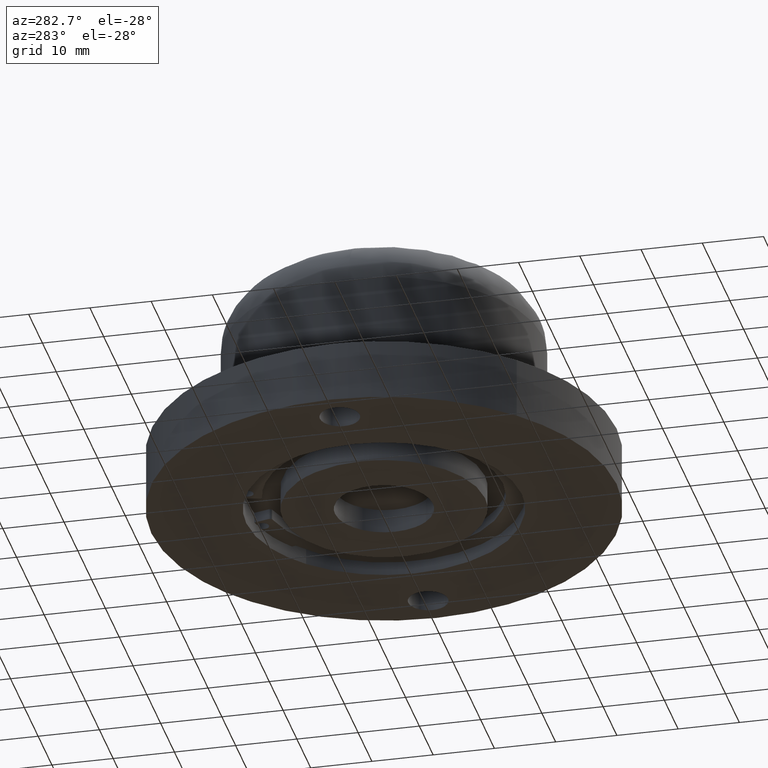
[diagram: clean part render]
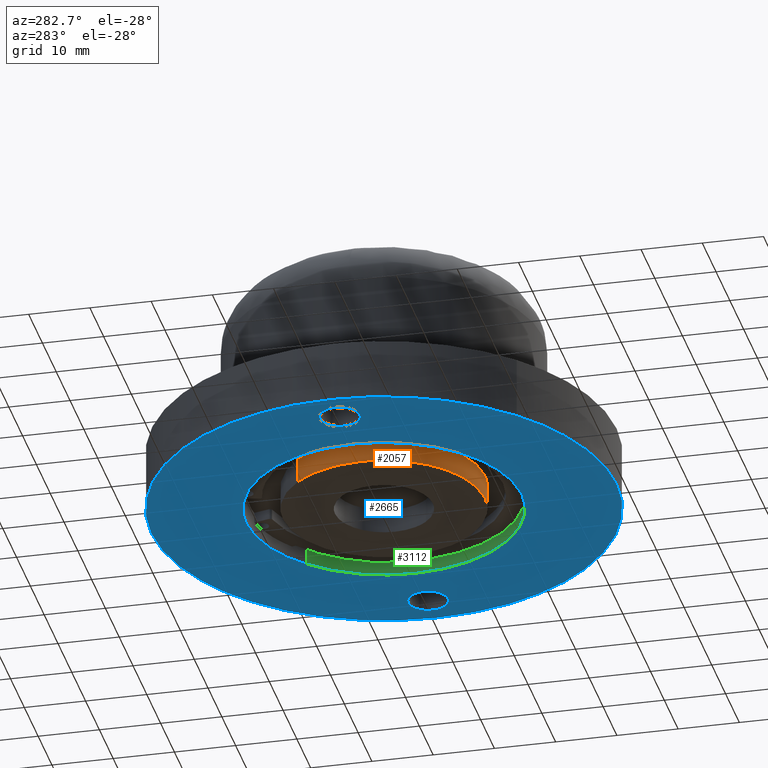
[diagram: same view with three faces highlighted in distinct colors, each labeled with its STEP entity id]
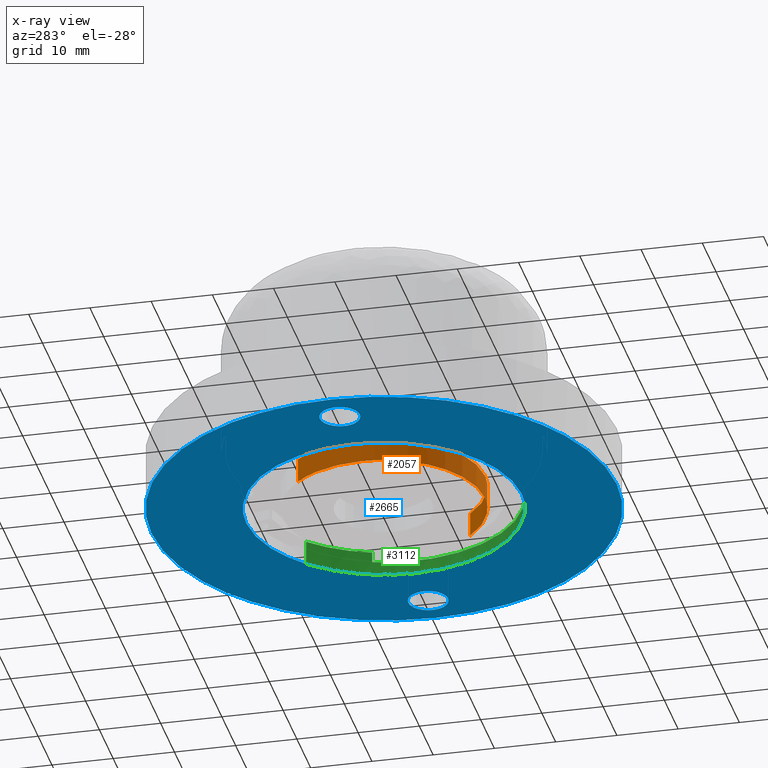
[diagram: x-ray of the same camera — body ghosted, the three highlighted faces saturated]
A machine part, auxiliary view with three faces highlighted in distinct colors.
The next image is the same camera in x-ray (body ghosted, the three faces saturated) — at least one of them is partly hidden behind the body in this view.
Their STEP definitions:

[orange] entity #2057 — the highlighted face is a freeform B-spline surface patch.
#1619=CARTESIAN_POINT('',(11.968676961405169,-11.357850386732320,3.801882E-012));
#1620=VERTEX_POINT('',#1619);
#1632=CARTESIAN_POINT('',(-0.000000775139092,-16.499999999999979,0.0));
#1633=VERTEX_POINT('',#1632);
#1634=CARTESIAN_POINT('',(11.968676961405169,-11.357850386732320,3.801882E-012));
#1635=CARTESIAN_POINT('',(10.984789090985879,-12.395316378407610,3.489348E-012));
#1636=CARTESIAN_POINT('',(9.045307793801317,-13.967843722948130,2.873266E-012));
#1637=CARTESIAN_POINT('',(6.152505709529919,-15.388439940342391,1.954360E-012));
#1638=CARTESIAN_POINT('',(3.243038940135712,-16.271971440735658,1.030160E-012));
#1639=CARTESIAN_POINT('',(1.255437118756049,-16.500275600590339,3.987932E-013));
#1640=CARTESIAN_POINT('',(-0.000000775139092,-16.499999999999979,0.0));
#1641=B_SPLINE_CURVE_WITH_KNOTS('',3,(#1634,#1635,#1636,#1637,#1638,#1639,#1640),.UNSPECIFIED.,.F.,.U.,(4,1,1,1,4),(0.000000018204332,4.289325287377976,7.427840289627335,9.624824988455574,13.391061784010050),.UNSPECIFIED.);
#1642=EDGE_CURVE('',#1620,#1633,#1641,.T.);
#1644=CARTESIAN_POINT('',(-16.500000000000000,0.0,0.0));
#1645=VERTEX_POINT('',#1644);
#1646=CARTESIAN_POINT('',(-0.000000775139092,-16.499999999999979,0.0));
#1647=CARTESIAN_POINT('',(-1.248687746818598,-16.500276981873480,0.0));
#1648=CARTESIAN_POINT('',(-3.239656736031277,-16.272811059789490,0.0));
#1649=CARTESIAN_POINT('',(-6.249951593112439,-15.359748829537111,0.0));
#1650=CARTESIAN_POINT('',(-8.583690488987827,-14.185068146472620,0.0));
#1651=CARTESIAN_POINT('',(-10.598194381921360,-12.700331333389590,0.0));
#1652=CARTESIAN_POINT('',(-12.366225815755641,-11.027533720586330,0.0));
#1653=CARTESIAN_POINT('',(-13.959986777233210,-8.959283221878900,0.0));
#1654=CARTESIAN_POINT('',(-15.238405517897339,-6.495022045210793,0.0));
#1655=CARTESIAN_POINT('',(-16.222388517718041,-3.577074260860902,0.0));
#1656=CARTESIAN_POINT('',(-16.500372596683661,-1.383686951275259,0.0));
#1657=CARTESIAN_POINT('',(-16.500000000000000,0.0,0.0));
#1658=B_SPLINE_CURVE_WITH_KNOTS('',3,(#1646,#1647,#1648,#1649,#1650,#1651,#1652,#1653,#1654,#1655,#1656,#1657),.UNSPECIFIED.,.F.,.U.,(4,1,1,1,1,1,1,1,1,4),(0.000000063737868,3.745983837319226,5.973329675447150,9.415591289025549,11.541722752784070,13.465298644780550,16.705067737391211,19.337391216413419,21.767237217739769,25.918179613273669),.UNSPECIFIED.);
#1659=EDGE_CURVE('',#1633,#1645,#1658,.T.);
#1661=CARTESIAN_POINT('',(-11.968676961405210,11.357850386732361,3.801411E-012));
#1662=VERTEX_POINT('',#1661);
#1663=CARTESIAN_POINT('',(-16.500000000000000,0.0,0.0));
#1664=CARTESIAN_POINT('',(-16.500093935574050,0.978686887331953,3.275612E-013));
#1665=CARTESIAN_POINT('',(-16.360251650265472,2.544539418220553,8.516435E-013));
#1666=CARTESIAN_POINT('',(-15.813478013553880,4.865869839065637,1.628580E-012));
#1667=CARTESIAN_POINT('',(-15.135667435314730,6.672952209941419,2.233401E-012));
#1668=CARTESIAN_POINT('',(-13.928140868614250,8.989943501103703,3.008885E-012));
#1669=CARTESIAN_POINT('',(-12.844708374387460,10.435152513913220,3.492589E-012));
#1670=CARTESIAN_POINT('',(-11.968676961405210,11.357850386732361,3.801411E-012));
#1671=B_SPLINE_CURVE_WITH_KNOTS('',3,(#1663,#1664,#1665,#1666,#1667,#1668,#1669,#1670),.UNSPECIFIED.,.F.,.U.,(4,1,1,1,1,4),(0.000000014829789,2.936042456992983,4.697677696256275,7.144362460186496,8.710257952234343,12.527119024813331),.UNSPECIFIED.);
#1672=EDGE_CURVE('',#1645,#1662,#1671,.T.);
#1979=CARTESIAN_POINT('',(11.968677121702740,-11.357850498946940,4.100000000000000));
#1980=CARTESIAN_POINT('',(0.610826622755804,-23.326527620649678,4.100000000000000));
#1981=CARTESIAN_POINT('',(-11.357850498946940,-11.968677121702740,4.100000000000000));
#1982=CARTESIAN_POINT('',(-23.326527620649678,-0.610826622755804,4.100000000000000));
#1983=CARTESIAN_POINT('',(-11.968677121702740,11.357850498946940,4.100000000000000));
#1984=CARTESIAN_POINT('',(11.968677121702740,-11.357850498946940,-0.102500000000000));
#1985=CARTESIAN_POINT('',(0.610826622755804,-23.326527620649678,-0.102500000000000));
#1986=CARTESIAN_POINT('',(-11.357850498946940,-11.968677121702740,-0.102500000000000));
#1987=CARTESIAN_POINT('',(-23.326527620649678,-0.610826622755804,-0.102500000000000));
#1988=CARTESIAN_POINT('',(-11.968677121702740,11.357850498946940,-0.102500000000000));
#1996=(BOUNDED_SURFACE()B_SPLINE_SURFACE(2,1,((#1979,#1984),(#1980,#1985),(#1981,#1986),(#1982,#1987),(#1983,#1988)),.UNSPECIFIED.,.F.,.F.,.U.)B_SPLINE_SURFACE_WITH_KNOTS((3,2,3),(2,2),(0.0,27.338095116624270,54.676190233248548),(0.0,4.202500000000000),.UNSPECIFIED.)GEOMETRIC_REPRESENTATION_ITEM()RATIONAL_B_SPLINE_SURFACE(((1.0,1.0),(0.707106781186548,0.707106781186548),(1.0,1.0),(0.707106781186548,0.707106781186548),(1.0,1.0)))REPRESENTATION_ITEM('')SURFACE());
#1997=ORIENTED_EDGE('',*,*,#1642,.F.);
#1998=CARTESIAN_POINT('',(11.968676961649249,-11.357850386475111,4.0));
#1999=VERTEX_POINT('',#1998);
#2000=CARTESIAN_POINT('',(11.968676961649249,-11.357850386475111,4.0));
#2001=CARTESIAN_POINT('',(11.968676961405169,-11.357850386732320,3.801882E-012));
#2002=QUASI_UNIFORM_CURVE('',1,(#2000,#2001),.UNSPECIFIED.,.F.,.U.);
#2003=EDGE_CURVE('',#1999,#1620,#2002,.T.);
#2004=ORIENTED_EDGE('',*,*,#2003,.F.);
#2005=CARTESIAN_POINT('',(-0.000000775139092,-16.499999999999979,4.0));
#2006=VERTEX_POINT('',#2005);
#2007=CARTESIAN_POINT('',(11.968676961649249,-11.357850386475111,4.0));
#2008=CARTESIAN_POINT('',(11.152664194395530,-12.218068598223660,4.000000000000002));
#2009=CARTESIAN_POINT('',(9.708408474394167,-13.443441752582009,4.000000000000017));
#2010=CARTESIAN_POINT('',(7.239973662596734,-14.898394984033320,3.999999999999993));
#2011=CARTESIAN_POINT('',(5.062017039053404,-15.769379129730890,4.000000000000020));
#2012=CARTESIAN_POINT('',(2.545663701152891,-16.362291743389921,3.999999999999968));
#2013=CARTESIAN_POINT('',(0.941560857529339,-16.500084529601821,4.000000000000058));
#2014=CARTESIAN_POINT('',(-0.000000775139092,-16.499999999999979,4.0));
#2015=B_SPLINE_CURVE_WITH_KNOTS('',3,(#2007,#2008,#2009,#2010,#2011,#2012,#2013,#2014),.UNSPECIFIED.,.F.,.U.,(4,1,1,1,1,4),(0.000000018207421,3.557001832210140,5.649360593906550,8.578648615879637,10.566388223454940,13.391061784364620),.UNSPECIFIED.);
#2016=EDGE_CURVE('',#1999,#2006,#2015,.T.);
#2017=ORIENTED_EDGE('',*,*,#2016,.T.);
#2018=CARTESIAN_POINT('',(-16.500000000000000,0.0,4.0));
#2019=VERTEX_POINT('',#2018);
#2020=CARTESIAN_POINT('',(-0.000000775139092,-16.499999999999979,4.0));
#2021=CARTESIAN_POINT('',(-1.248687707669788,-16.500276876803550,4.000000000000012));
#2022=CARTESIAN_POINT('',(-3.239656820639448,-16.272811278881559,3.999999999999990));
#2023=CARTESIAN_POINT('',(-6.249951575072144,-15.359748735198460,3.999999999999993));
#2024=CARTESIAN_POINT('',(-8.583690424453968,-14.185068117383100,4.000000000000041));
#2025=CARTESIAN_POINT('',(-10.598194679566859,-12.700331440198950,3.999999999999937));
#2026=CARTESIAN_POINT('',(-12.366224141112459,-11.027533280366990,4.000000000000054));
#2027=CARTESIAN_POINT('',(-13.959991382820020,-8.959284406249260,3.999999999999987));
#2028=CARTESIAN_POINT('',(-15.222802208195130,-6.525074197197268,3.999999999999999));
#2029=CARTESIAN_POINT('',(-16.215533672528540,-3.610804622571055,4.0));
#2030=CARTESIAN_POINT('',(-16.500416458626830,-1.417446212818309,4.0));
#2031=CARTESIAN_POINT('',(-16.500000000000000,0.0,4.0));
#2032=B_SPLINE_CURVE_WITH_KNOTS('',3,(#2020,#2021,#2022,#2023,#2024,#2025,#2026,#2027,#2028,#2029,#2030,#2031),.UNSPECIFIED.,.F.,.U.,(4,1,1,1,1,1,1,1,1,4),(0.000000063737868,3.745983837319226,5.973329675447150,9.415591289025549,11.541722752784070,13.465298644780550,16.705067737391211,19.337391216413419,21.665983173763401,25.918179613273669),.UNSPECIFIED.);
#2033=EDGE_CURVE('',#2006,#2019,#2032,.T.);
#2034=ORIENTED_EDGE('',*,*,#2033,.T.);
#2035=CARTESIAN_POINT('',(-11.968676961649290,11.357850386475150,4.0));
#2036=VERTEX_POINT('',#2035);
#2037=CARTESIAN_POINT('',(-16.500000000000000,0.0,4.0));
#2038=CARTESIAN_POINT('',(-16.500222018484990,1.174439219009774,4.000000000000004));
#2039=CARTESIAN_POINT('',(-16.318070360276550,2.870720046987506,3.999999999999987));
#2040=CARTESIAN_POINT('',(-15.627074709375970,5.458129619005789,4.000000000000017));
#2041=CARTESIAN_POINT('',(-14.777806589435810,7.481485487101053,3.999999999999978));
#2042=CARTESIAN_POINT('',(-13.482158891822740,9.600988386280774,4.000000000000001));
#2043=CARTESIAN_POINT('',(-12.530110986834559,10.766290523299469,4.000000000000048));
#2044=CARTESIAN_POINT('',(-11.968676961649290,11.357850386475150,4.0));
#2045=B_SPLINE_CURVE_WITH_KNOTS('',3,(#2037,#2038,#2039,#2040,#2041,#2042,#2043,#2044),.UNSPECIFIED.,.F.,.U.,(4,1,1,1,1,4),(0.000000014828075,3.523253725374538,5.089144237698300,8.025176811392296,10.080420592119429,12.527119024458740),.UNSPECIFIED.);
#2046=EDGE_CURVE('',#2019,#2036,#2045,.T.);
#2047=ORIENTED_EDGE('',*,*,#2046,.T.);
#2048=CARTESIAN_POINT('',(-11.968676961649290,11.357850386475150,4.0));
#2049=CARTESIAN_POINT('',(-11.968676961405210,11.357850386732361,3.801411E-012));
#2050=QUASI_UNIFORM_CURVE('',1,(#2048,#2049),.UNSPECIFIED.,.F.,.U.);
#2051=EDGE_CURVE('',#2036,#1662,#2050,.T.);
#2052=ORIENTED_EDGE('',*,*,#2051,.T.);
#2053=ORIENTED_EDGE('',*,*,#1672,.F.);
#2054=ORIENTED_EDGE('',*,*,#1659,.F.);
#2055=EDGE_LOOP('',(#1997,#2004,#2017,#2034,#2047,#2052,#2053,#2054));
#2056=FACE_OUTER_BOUND('',#2055,.T.);
#2057=ADVANCED_FACE('',(#2056),#1996,.T.);

[blue] entity #2665 — the highlighted face is a freeform B-spline surface patch.
#1732=CARTESIAN_POINT('',(-29.642533528897019,-2.237152302038278,1.449313E-012));
#1733=VERTEX_POINT('',#1732);
#1734=CARTESIAN_POINT('',(-32.000000872032032,-3.249999999999883,0.0));
#1735=VERTEX_POINT('',#1734);
#1736=CARTESIAN_POINT('',(-29.642533528897019,-2.237152302038278,1.449313E-012));
#1737=CARTESIAN_POINT('',(-29.812718911954310,-2.416553630320021,1.344687E-012));
#1738=CARTESIAN_POINT('',(-30.194299978348852,-2.736201311343200,1.110101E-012));
#1739=CARTESIAN_POINT('',(-30.983585320248569,-3.136453694357955,6.248673E-013));
#1740=CARTESIAN_POINT('',(-31.615299871053061,-3.250293337314126,2.365047E-013));
#1741=CARTESIAN_POINT('',(-32.000000872032032,-3.249999999999883,0.0));
#1742=B_SPLINE_CURVE_WITH_KNOTS('',3,(#1736,#1737,#1738,#1739,#1740,#1741),.UNSPECIFIED.,.F.,.U.,(4,1,1,4),(0.000000034380095,0.741839680325937,1.483664744429159,2.637647175894150),.UNSPECIFIED.);
#1743=EDGE_CURVE('',#1733,#1735,#1742,.T.);
#1745=CARTESIAN_POINT('',(-35.250000000000000,0.0,0.0));
#1746=VERTEX_POINT('',#1745);
#1747=CARTESIAN_POINT('',(-32.000000872032032,-3.249999999999883,0.0));
#1748=CARTESIAN_POINT('',(-32.305780485377447,-3.250111250315606,0.0));
#1749=CARTESIAN_POINT('',(-32.850802187124863,-3.172501806209160,0.0));
#1750=CARTESIAN_POINT('',(-33.542820880113560,-2.885814769784780,0.0));
#1751=CARTESIAN_POINT('',(-34.128758297563500,-2.489109738404362,0.0));
#1752=CARTESIAN_POINT('',(-34.618304541596657,-1.974968640300359,0.0));
#1753=CARTESIAN_POINT('',(-34.934803439222222,-1.431797257106251,0.0));
#1754=CARTESIAN_POINT('',(-35.180037223859983,-0.784288711579714,0.0));
#1755=CARTESIAN_POINT('',(-35.250181994713600,-0.332389054414281,0.0));
#1756=CARTESIAN_POINT('',(-35.250000000000000,0.0,0.0));
#1757=B_SPLINE_CURVE_WITH_KNOTS('',3,(#1747,#1748,#1749,#1750,#1751,#1752,#1753,#1754,#1755,#1756),.UNSPECIFIED.,.F.,.U.,(4,1,1,1,1,1,1,4),(0.000000129781110,0.917318523883469,1.635244167473244,2.233517934609382,3.031138163174991,3.749071543144301,4.108034228417267,5.105119602862198),.UNSPECIFIED.);
#1758=EDGE_CURVE('',#1735,#1746,#1757,.T.);
#1760=CARTESIAN_POINT('',(-34.357466471103002,2.237152302038285,1.449313E-012));
#1761=VERTEX_POINT('',#1760);
#1762=CARTESIAN_POINT('',(-35.250000000000000,0.0,0.0));
#1763=CARTESIAN_POINT('',(-35.250031826776407,0.218475293269756,1.415367E-013));
#1764=CARTESIAN_POINT('',(-35.207063892899882,0.642546847291624,4.162664E-013));
#1765=CARTESIAN_POINT('',(-34.965709980079332,1.432723492502833,9.281731E-013));
#1766=CARTESIAN_POINT('',(-34.632024189684913,1.948380867111533,1.262236E-012));
#1767=CARTESIAN_POINT('',(-34.357466471103002,2.237152302038285,1.449313E-012));
#1768=B_SPLINE_CURVE_WITH_KNOTS('',3,(#1762,#1763,#1764,#1765,#1766,#1767),.UNSPECIFIED.,.F.,.U.,(4,1,1,4),(0.000000027798229,0.655422955245011,1.272273285646039,2.467473726235141),.UNSPECIFIED.);
#1769=EDGE_CURVE('',#1746,#1761,#1768,.T.);
#1805=CARTESIAN_POINT('',(-28.750000000000000,0.0,0.0));
#1806=VERTEX_POINT('',#1805);
#1807=CARTESIAN_POINT('',(-28.750000000000000,0.0,0.0));
#1808=CARTESIAN_POINT('',(-28.749678173662161,-0.385600420277290,2.498067E-013));
#1809=CARTESIAN_POINT('',(-28.847208780936882,-0.925117841839201,5.993267E-013));
#1810=CARTESIAN_POINT('',(-29.188811473554271,-1.675639491845359,1.085543E-012));
#1811=CARTESIAN_POINT('',(-29.447849113633620,-2.032113268213052,1.316481E-012));
#1812=CARTESIAN_POINT('',(-29.642533528897019,-2.237152302038278,1.449313E-012));
#1813=B_SPLINE_CURVE_WITH_KNOTS('',3,(#1807,#1808,#1809,#1810,#1811,#1812),.UNSPECIFIED.,.F.,.U.,(4,1,1,4),(0.000000027799330,1.156632403075037,1.619273547889676,2.467473726235141),.UNSPECIFIED.);
#1814=EDGE_CURVE('',#1806,#1733,#1813,.T.);
#1821=CARTESIAN_POINT('',(-31.999999127968021,3.249999999999883,0.0));
#1822=VERTEX_POINT('',#1821);
#1823=CARTESIAN_POINT('',(-34.357466471103002,2.237152302038285,1.449313E-012));
#1824=CARTESIAN_POINT('',(-34.177826682307582,2.426514053970246,1.338875E-012));
#1825=CARTESIAN_POINT('',(-33.740656098194279,2.788159452349856,1.070113E-012));
#1826=CARTESIAN_POINT('',(-32.934105855345102,3.159135625834434,5.742659E-013));
#1827=CARTESIAN_POINT('',(-32.315980035560891,3.250136531481289,1.942573E-013));
#1828=CARTESIAN_POINT('',(-31.999999127968021,3.249999999999883,0.0));
#1829=B_SPLINE_CURVE_WITH_KNOTS('',3,(#1823,#1824,#1825,#1826,#1827,#1828),.UNSPECIFIED.,.F.,.U.,(4,1,1,4),(0.000000034377166,0.783054728368839,1.689740378484470,2.637647175894122),.UNSPECIFIED.);
#1830=EDGE_CURVE('',#1761,#1822,#1829,.T.);
#1832=CARTESIAN_POINT('',(-31.999999127968021,3.249999999999883,0.0));
#1833=CARTESIAN_POINT('',(-31.747403919995499,3.250049208881102,0.0));
#1834=CARTESIAN_POINT('',(-31.228938574091480,3.189257057750748,0.0));
#1835=CARTESIAN_POINT('',(-30.412742139810469,2.886059745768594,0.0));
#1836=CARTESIAN_POINT('',(-29.720645970993179,2.372727252494123,0.0));
#1837=CARTESIAN_POINT('',(-29.194032698755350,1.697764129077551,0.0));
#1838=CARTESIAN_POINT('',(-28.842595675328479,0.930531862879630,0.0));
#1839=CARTESIAN_POINT('',(-28.749835549084441,0.332377587229104,0.0));
#1840=CARTESIAN_POINT('',(-28.750000000000000,0.0,0.0));
#1841=B_SPLINE_CURVE_WITH_KNOTS('',3,(#1832,#1833,#1834,#1835,#1836,#1837,#1838,#1839,#1840),.UNSPECIFIED.,.F.,.U.,(4,1,1,1,1,1,4),(0.000000129775697,0.757785345239560,1.555475075931355,2.592403988745427,3.310341276803523,4.108034228417171,5.105119602862352),.UNSPECIFIED.);
#1842=EDGE_CURVE('',#1822,#1806,#1841,.T.);
#1865=CARTESIAN_POINT('',(34.357466471102981,-2.237152302038278,1.449285E-012));
#1866=VERTEX_POINT('',#1865);
#1867=CARTESIAN_POINT('',(31.999999127967971,-3.249999999999883,0.0));
#1868=VERTEX_POINT('',#1867);
#1869=CARTESIAN_POINT('',(34.357466471102981,-2.237152302038278,1.449285E-012));
#1870=CARTESIAN_POINT('',(34.092850527189412,-2.516386653649244,1.286609E-012));
#1871=CARTESIAN_POINT('',(33.586712335927793,-2.888022364072639,9.754536E-013));
#1872=CARTESIAN_POINT('',(32.755532445595513,-3.190085642931139,4.644744E-013));
#1873=CARTESIAN_POINT('',(32.261021100815618,-3.250060922508615,1.604668E-013));
#1874=CARTESIAN_POINT('',(31.999999127967971,-3.249999999999883,0.0));
#1875=B_SPLINE_CURVE_WITH_KNOTS('',3,(#1869,#1870,#1871,#1872,#1873,#1874),.UNSPECIFIED.,.F.,.U.,(4,1,1,4),(0.000000034381877,1.153982465817635,1.854592481882573,2.637647175894155),.UNSPECIFIED.);
#1876=EDGE_CURVE('',#1866,#1868,#1875,.T.);
#1878=CARTESIAN_POINT('',(28.750000000000000,0.0,0.0));
#1879=VERTEX_POINT('',#1878);
#1880=CARTESIAN_POINT('',(31.999999127967971,-3.249999999999883,0.0));
#1881=CARTESIAN_POINT('',(31.667626143897500,-3.250134248629871,0.0));
#1882=CARTESIAN_POINT('',(31.016272866433340,-3.149230281042615,0.0));
#1883=CARTESIAN_POINT('',(30.231241638650641,-2.766108340363807,0.0));
#1884=CARTESIAN_POINT('',(29.638450235974869,-2.267153463685511,0.0));
#1885=CARTESIAN_POINT('',(29.194019741288400,-1.697777689697726,0.0));
#1886=CARTESIAN_POINT('',(28.842593987159152,-0.930535830121046,0.0));
#1887=CARTESIAN_POINT('',(28.749836171943809,-0.332376278314395,0.0));
#1888=CARTESIAN_POINT('',(28.750000000000000,0.0,0.0));
#1889=B_SPLINE_CURVE_WITH_KNOTS('',3,(#1880,#1881,#1882,#1883,#1884,#1885,#1886,#1887,#1888),.UNSPECIFIED.,.F.,.U.,(4,1,1,1,1,1,4),(0.000000129775025,0.997086739149202,1.954310218396840,2.592403988745713,3.310341276803696,4.108034228417170,5.105119602862329),.UNSPECIFIED.);
#1890=EDGE_CURVE('',#1868,#1879,#1889,.T.);
#1892=CARTESIAN_POINT('',(29.642533528897012,2.237152302038285,1.449285E-012));
#1893=VERTEX_POINT('',#1892);
#1894=CARTESIAN_POINT('',(28.750000000000000,0.0,0.0));
#1895=CARTESIAN_POINT('',(28.749968442449521,0.218475409503041,1.415340E-013));
#1896=CARTESIAN_POINT('',(28.792942105401689,0.642542042730007,4.162554E-013));
#1897=CARTESIAN_POINT('',(29.034266809417161,1.432740948470907,9.281667E-013));
#1898=CARTESIAN_POINT('',(29.367998825501530,1.948362894469437,1.262200E-012));
#1899=CARTESIAN_POINT('',(29.642533528897012,2.237152302038285,1.449285E-012));
#1900=B_SPLINE_CURVE_WITH_KNOTS('',3,(#1894,#1895,#1896,#1897,#1898,#1899),.UNSPECIFIED.,.F.,.U.,(4,1,1,4),(0.000000027798610,0.655422955245057,1.272273285645887,2.467473726235143),.UNSPECIFIED.);
#1901=EDGE_CURVE('',#1879,#1893,#1900,.T.);
#1937=CARTESIAN_POINT('',(35.250000000000000,0.0,0.0));
#1938=VERTEX_POINT('',#1937);
#1939=CARTESIAN_POINT('',(35.250000000000000,0.0,0.0));
#1940=CARTESIAN_POINT('',(35.250019324038647,-0.218471214729373,1.415313E-013));
#1941=CARTESIAN_POINT('',(35.200614409333902,-0.706826801741180,4.579007E-013));
#1942=CARTESIAN_POINT('',(34.935039269981317,-1.492004267623497,9.665590E-013));
#1943=CARTESIAN_POINT('',(34.587589849242732,-1.994874934895268,1.292332E-012));
#1944=CARTESIAN_POINT('',(34.357466471102981,-2.237152302038278,1.449285E-012));
#1945=B_SPLINE_CURVE_WITH_KNOTS('',3,(#1939,#1940,#1941,#1942,#1943,#1944),.UNSPECIFIED.,.F.,.U.,(4,1,1,4),(0.000000027798943,0.655422955245222,1.465055185421959,2.467473726235137),.UNSPECIFIED.);
#1946=EDGE_CURVE('',#1938,#1866,#1945,.T.);
#1953=CARTESIAN_POINT('',(32.000000872031983,3.249999999999883,0.0));
#1954=VERTEX_POINT('',#1953);
#1955=CARTESIAN_POINT('',(29.642533528897012,2.237152302038285,1.449285E-012));
#1956=CARTESIAN_POINT('',(29.888253466523750,2.496437096767766,1.298225E-012));
#1957=CARTESIAN_POINT('',(30.344098759251491,2.840104543717530,1.017988E-012));
#1958=CARTESIAN_POINT('',(31.162081516410339,3.173229051403968,5.151224E-013));
#1959=CARTESIAN_POINT('',(31.684015399741391,3.250146699195738,1.942564E-013));
#1960=CARTESIAN_POINT('',(32.000000872031983,3.249999999999883,0.0));
#1961=B_SPLINE_CURVE_WITH_KNOTS('',3,(#1955,#1956,#1957,#1958,#1959,#1960),.UNSPECIFIED.,.F.,.U.,(4,1,1,4),(0.000000034378413,1.071556476742909,1.689740378484555,2.637647175894119),.UNSPECIFIED.);
#1962=EDGE_CURVE('',#1893,#1954,#1961,.T.);
#1964=CARTESIAN_POINT('',(32.000000872031983,3.249999999999883,0.0));
#1965=CARTESIAN_POINT('',(32.332386639967631,3.250182664097433,0.0));
#1966=CARTESIAN_POINT('',(32.850752028110307,3.169713299381408,0.0));
#1967=CARTESIAN_POINT('',(33.627476384258237,2.848071067887776,0.0));
#1968=CARTESIAN_POINT('',(34.281019959436172,2.375756441413685,0.0));
#1969=CARTESIAN_POINT('',(34.809191067523372,1.698783141761978,0.0));
#1970=CARTESIAN_POINT('',(35.161501462011373,0.903939198279112,0.0));
#1971=CARTESIAN_POINT('',(35.250172634775140,0.332379576685614,0.0));
#1972=CARTESIAN_POINT('',(35.250000000000000,0.0,0.0));
#1973=B_SPLINE_CURVE_WITH_KNOTS('',3,(#1964,#1965,#1966,#1967,#1968,#1969,#1970,#1971,#1972),.UNSPECIFIED.,.F.,.U.,(4,1,1,1,1,1,4),(0.000000129762967,0.997086739137361,1.555475075921475,2.512715491897008,3.390108314693607,4.108034228414214,5.105119602862353),.UNSPECIFIED.);
#1974=EDGE_CURVE('',#1954,#1938,#1973,.T.);
#2144=CARTESIAN_POINT('',(26.157473891881342,27.564226083740241,-2.914335E-016));
#2145=VERTEX_POINT('',#2144);
#2146=CARTESIAN_POINT('',(38.0,0.0,0.0));
#2147=VERTEX_POINT('',#2146);
#2148=CARTESIAN_POINT('',(26.157473891881342,27.564226083740241,-2.914335E-016));
#2149=CARTESIAN_POINT('',(27.555697281529259,26.237489403314960,-2.774061E-016));
#2150=CARTESIAN_POINT('',(30.149626935639411,23.370644161162719,-2.470953E-016));
#2151=CARTESIAN_POINT('',(33.033311390102817,19.000969794242380,-2.008952E-016));
#2152=CARTESIAN_POINT('',(35.146769086756599,14.662630031390870,-1.550264E-016));
#2153=CARTESIAN_POINT('',(36.753222641513652,10.110252657649969,-1.068946E-016));
#2154=CARTESIAN_POINT('',(37.775668343424648,5.139996365936055,-5.434462E-017));
#2155=CARTESIAN_POINT('',(38.000042826769139,1.606245195222817,-1.698265E-017));
#2156=CARTESIAN_POINT('',(38.0,0.0,0.0));
#2157=B_SPLINE_CURVE_WITH_KNOTS('',3,(#2148,#2149,#2150,#2151,#2152,#2153,#2154,#2155,#2156),.UNSPECIFIED.,.F.,.U.,(4,1,1,1,1,1,4),(6.078906E-009,5.782500829786617,11.565015097231310,15.660941498698490,20.238754237844731,26.021275044094558,30.840019519265280),.UNSPECIFIED.);
#2158=EDGE_CURVE('',#2145,#2147,#2157,.T.);
#2168=CARTESIAN_POINT('',(-26.157473891881342,-27.564226083740241,-2.914335E-016));
#2169=VERTEX_POINT('',#2168);
#2175=CARTESIAN_POINT('',(0.0,-38.0,0.0));
#2176=VERTEX_POINT('',#2175);
#2177=CARTESIAN_POINT('',(0.0,-38.0,0.0));
#2178=CARTESIAN_POINT('',(-1.728014542835451,-38.000068436495162,-1.925268E-017));
#2179=CARTESIAN_POINT('',(-5.259161109388106,-37.758750778294662,-5.859495E-017));
#2180=CARTESIAN_POINT('',(-9.755109776775599,-36.811757223805337,-1.086866E-016));
#2181=CARTESIAN_POINT('',(-14.537049241669710,-35.225578188738083,-1.619646E-016));
#2182=CARTESIAN_POINT('',(-18.683410454457260,-33.233841459527000,-2.081613E-016));
#2183=CARTESIAN_POINT('',(-22.879860751978558,-30.440766655838420,-2.549160E-016));
#2184=CARTESIAN_POINT('',(-25.067540165356590,-28.598589220818582,-2.792900E-016));
#2185=CARTESIAN_POINT('',(-26.157473891881342,-27.564226083740241,-2.914335E-016));
#2186=B_SPLINE_CURVE_WITH_KNOTS('',3,(#2177,#2178,#2179,#2180,#2181,#2182,#2183,#2184,#2185),.UNSPECIFIED.,.F.,.U.,(4,1,1,1,1,1,4),(7.103466E-009,5.184044570142174,10.593483759807800,13.749004655623640,20.285388776830089,24.342477844853271,28.850334847731549),.UNSPECIFIED.);
#2187=EDGE_CURVE('',#2176,#2169,#2186,.T.);
#2189=CARTESIAN_POINT('',(38.0,0.0,0.0));
#2190=CARTESIAN_POINT('',(38.000016172846287,-1.398982740761525,0.0));
#2191=CARTESIAN_POINT('',(37.819599021366123,-4.663295098883793,0.0));
#2192=CARTESIAN_POINT('',(36.920980386368321,-9.490109283786181,0.0));
#2193=CARTESIAN_POINT('',(35.466099666364272,-13.848828972288240,0.0));
#2194=CARTESIAN_POINT('',(33.781505471288568,-17.526642928746568,0.0));
#2195=CARTESIAN_POINT('',(31.676503222575601,-21.164173497242729,0.0));
#2196=CARTESIAN_POINT('',(29.139140980904639,-24.520366016240899,0.0));
#2197=CARTESIAN_POINT('',(25.974266084610019,-27.844516525771660,0.0));
#2198=CARTESIAN_POINT('',(22.278801301870239,-30.954157523967410,0.0));
#2199=CARTESIAN_POINT('',(17.632204322585821,-33.817256036663643,0.0));
#2200=CARTESIAN_POINT('',(12.763500720703281,-35.904241209950868,0.0));
#2201=CARTESIAN_POINT('',(8.942641782572798,-36.986845787716412,0.0));
#2202=CARTESIAN_POINT('',(4.740979609753280,-37.782473897051503,0.0));
#2203=CARTESIAN_POINT('',(2.020776865596123,-38.000162485325262,0.0));
#2204=CARTESIAN_POINT('',(0.0,-38.0,0.0));
#2205=B_SPLINE_CURVE_WITH_KNOTS('',3,(#2189,#2190,#2191,#2192,#2193,#2194,#2195,#2196,#2197,#2198,#2199,#2200,#2201,#2202,#2203,#2204),.UNSPECIFIED.,.F.,.U.,(4,1,1,1,1,1,1,1,1,1,1,1,1,4),(0.000000017775200,4.196958192233026,9.792936329085599,14.689422862083140,17.953743461424200,21.917558790327551,27.280371545114392,30.544644522137499,35.674293273395612,41.736614609533831,46.866258836865192,51.529573690941540,53.628055961756921,59.690354054898677),.UNSPECIFIED.);
#2206=EDGE_CURVE('',#2147,#2176,#2205,.T.);
#2229=CARTESIAN_POINT('',(0.0,38.0,0.0));
#2230=VERTEX_POINT('',#2229);
#2231=CARTESIAN_POINT('',(0.0,38.0,0.0));
#2232=CARTESIAN_POINT('',(1.728014542835451,38.000068436495162,-1.925268E-017));
#2233=CARTESIAN_POINT('',(5.259161109388106,37.758750778294662,-5.859495E-017));
#2234=CARTESIAN_POINT('',(9.755109776775599,36.811757223805337,-1.086866E-016));
#2235=CARTESIAN_POINT('',(14.537049241669710,35.225578188738083,-1.619646E-016));
#2236=CARTESIAN_POINT('',(18.683410454457260,33.233841459527000,-2.081613E-016));
#2237=CARTESIAN_POINT('',(22.879860751978558,30.440766655838420,-2.549160E-016));
#2238=CARTESIAN_POINT('',(25.067540165356590,28.598589220818582,-2.792900E-016));
#2239=CARTESIAN_POINT('',(26.157473891881342,27.564226083740241,-2.914335E-016));
#2240=B_SPLINE_CURVE_WITH_KNOTS('',3,(#2231,#2232,#2233,#2234,#2235,#2236,#2237,#2238,#2239),.UNSPECIFIED.,.F.,.U.,(4,1,1,1,1,1,4),(7.103466E-009,5.184044570142174,10.593483759807800,13.749004655623640,20.285388776830089,24.342477844853271,28.850334847731549),.UNSPECIFIED.);
#2241=EDGE_CURVE('',#2230,#2145,#2240,.T.);
#2243=CARTESIAN_POINT('',(-38.0,0.0,0.0));
#2244=VERTEX_POINT('',#2243);
#2245=CARTESIAN_POINT('',(-38.0,0.0,0.0));
#2246=CARTESIAN_POINT('',(-38.000016172846287,1.398982740761525,0.0));
#2247=CARTESIAN_POINT('',(-37.819599021366123,4.663295098883793,0.0));
#2248=CARTESIAN_POINT('',(-36.920980386368321,9.490109283786181,0.0));
#2249=CARTESIAN_POINT('',(-35.466099666364272,13.848828972288240,0.0));
#2250=CARTESIAN_POINT('',(-33.781505471288568,17.526642928746568,0.0));
#2251=CARTESIAN_POINT('',(-31.676503222575601,21.164173497242729,0.0));
#2252=CARTESIAN_POINT('',(-29.139140980904639,24.520366016240899,0.0));
#2253=CARTESIAN_POINT('',(-25.974266084610019,27.844516525771660,0.0));
#2254=CARTESIAN_POINT('',(-22.278801301870239,30.954157523967410,0.0));
#2255=CARTESIAN_POINT('',(-17.632204322585821,33.817256036663643,0.0));
#2256=CARTESIAN_POINT('',(-12.763500720703281,35.904241209950868,0.0));
#2257=CARTESIAN_POINT('',(-8.942641782572798,36.986845787716412,0.0));
#2258=CARTESIAN_POINT('',(-4.740979609753280,37.782473897051503,0.0));
#2259=CARTESIAN_POINT('',(-2.020776865596123,38.000162485325262,0.0));
#2260=CARTESIAN_POINT('',(0.0,38.0,0.0));
#2261=B_SPLINE_CURVE_WITH_KNOTS('',3,(#2245,#2246,#2247,#2248,#2249,#2250,#2251,#2252,#2253,#2254,#2255,#2256,#2257,#2258,#2259,#2260),.UNSPECIFIED.,.F.,.U.,(4,1,1,1,1,1,1,1,1,1,1,1,1,4),(0.000000017775200,4.196958192233026,9.792936329085599,14.689422862083140,17.953743461424200,21.917558790327551,27.280371545114392,30.544644522137499,35.674293273395612,41.736614609533831,46.866258836865192,51.529573690941540,53.628055961756921,59.690354054898677),.UNSPECIFIED.);
#2262=EDGE_CURVE('',#2244,#2230,#2261,.T.);
#2264=CARTESIAN_POINT('',(-26.157473891881342,-27.564226083740241,-2.914335E-016));
#2265=CARTESIAN_POINT('',(-27.555697281529259,-26.237489403314960,-2.774061E-016));
#2266=CARTESIAN_POINT('',(-30.149626935639411,-23.370644161162719,-2.470953E-016));
#2267=CARTESIAN_POINT('',(-33.033311390102817,-19.000969794242380,-2.008952E-016));
#2268=CARTESIAN_POINT('',(-35.146769086756599,-14.662630031390870,-1.550264E-016));
#2269=CARTESIAN_POINT('',(-36.753222641513652,-10.110252657649969,-1.068946E-016));
#2270=CARTESIAN_POINT('',(-37.775668343424648,-5.139996365936055,-5.434462E-017));
#2271=CARTESIAN_POINT('',(-38.000042826769139,-1.606245195222817,-1.698265E-017));
#2272=CARTESIAN_POINT('',(-38.0,0.0,0.0));
#2273=B_SPLINE_CURVE_WITH_KNOTS('',3,(#2264,#2265,#2266,#2267,#2268,#2269,#2270,#2271,#2272),.UNSPECIFIED.,.F.,.U.,(4,1,1,1,1,1,4),(6.078906E-009,5.782500829786617,11.565015097231310,15.660941498698490,20.238754237844731,26.021275044094558,30.840019519265280),.UNSPECIFIED.);
#2274=EDGE_CURVE('',#2169,#2244,#2273,.T.);
#2542=CARTESIAN_POINT('',(41.796199852697249,-41.796199852697242,0.0));
#2543=CARTESIAN_POINT('',(-41.796201891176104,-41.796199852697242,0.0));
#2544=CARTESIAN_POINT('',(41.796199852697249,41.796201891176104,0.0));
#2545=CARTESIAN_POINT('',(-41.796201891176104,41.796201891176104,0.0));
#2546=B_SPLINE_SURFACE_WITH_KNOTS('',1,1,((#2542,#2544),(#2543,#2545)),.UNSPECIFIED.,.F.,.F.,.U.,(2,2),(2,2),(0.0,83.592401743873353),(0.0,83.592401743873339),.UNSPECIFIED.);
#2547=ORIENTED_EDGE('',*,*,#2262,.T.);
#2548=ORIENTED_EDGE('',*,*,#2241,.T.);
#2549=ORIENTED_EDGE('',*,*,#2158,.T.);
#2550=ORIENTED_EDGE('',*,*,#2206,.T.);
#2551=ORIENTED_EDGE('',*,*,#2187,.T.);
#2552=ORIENTED_EDGE('',*,*,#2274,.T.);
#2553=EDGE_LOOP('',(#2547,#2548,#2549,#2550,#2551,#2552));
#2554=FACE_OUTER_BOUND('',#2553,.T.);
#2555=CARTESIAN_POINT('',(22.500000000000000,0.0,0.0));
#2556=VERTEX_POINT('',#2555);
#2557=CARTESIAN_POINT('',(-0.000001007943943,-22.499999999999979,0.0));
#2558=VERTEX_POINT('',#2557);
#2559=CARTESIAN_POINT('',(22.500000000000000,0.0,0.0));
#2560=CARTESIAN_POINT('',(22.500084421633488,-1.196509804189176,0.0));
#2561=CARTESIAN_POINT('',(22.319695605257539,-3.451434104914415,0.0));
#2562=CARTESIAN_POINT('',(21.625261004637292,-6.416037172447368,0.0));
#2563=CARTESIAN_POINT('',(20.669832038664790,-9.010649973098776,0.0));
#2564=CARTESIAN_POINT('',(19.529704174569719,-11.275728144356220,0.0));
#2565=CARTESIAN_POINT('',(18.185043236328909,-13.315084904862980,0.0));
#2566=CARTESIAN_POINT('',(16.612803665246791,-15.242922577701490,0.0));
#2567=CARTESIAN_POINT('',(14.934551686697841,-16.890561685435610,0.0));
#2568=CARTESIAN_POINT('',(12.941870068568850,-18.455508169422561,0.0));
#2569=CARTESIAN_POINT('',(10.600608099167451,-19.928105995401811,0.0));
#2570=CARTESIAN_POINT('',(7.443913242386977,-21.350773155513970,0.0));
#2571=CARTESIAN_POINT('',(3.773576835690184,-22.294018892011540,0.0));
#2572=CARTESIAN_POINT('',(1.196498320649902,-22.500064118313830,0.0));
#2573=CARTESIAN_POINT('',(-0.000001007943943,-22.499999999999979,0.0));
#2574=B_SPLINE_CURVE_WITH_KNOTS('',3,(#2559,#2560,#2561,#2562,#2563,#2564,#2565,#2566,#2567,#2568,#2569,#2570,#2571,#2572,#2573),.UNSPECIFIED.,.F.,.U.,(4,1,1,1,1,1,1,1,1,1,1,1,4),(0.000000054818592,3.589519467578437,6.764863016691638,9.111861811803166,11.873045435385009,14.358083994149879,16.428995356954381,19.328154013437210,21.399065162000191,24.022171446276658,27.611698208319389,31.753474319223422,35.342973363759612),.UNSPECIFIED.);
#2575=EDGE_CURVE('',#2556,#2558,#2574,.T.);
#2576=ORIENTED_EDGE('',*,*,#2575,.F.);
#2577=CARTESIAN_POINT('',(15.588206218042719,16.225222286121198,-2.081668E-016));
#2578=VERTEX_POINT('',#2577);
#2579=CARTESIAN_POINT('',(15.588206218042719,16.225222286121198,-2.081668E-016));
#2580=CARTESIAN_POINT('',(16.336925753051339,15.505950925662621,-1.989387E-016));
#2581=CARTESIAN_POINT('',(17.670989713196949,14.033613017425189,-1.800488E-016));
#2582=CARTESIAN_POINT('',(19.578002296755201,11.270492206081190,-1.445985E-016));
#2583=CARTESIAN_POINT('',(21.185583473393351,7.941988164421415,-1.018943E-016));
#2584=CARTESIAN_POINT('',(22.262372888276101,4.011337908746667,-5.146478E-017));
#2585=CARTESIAN_POINT('',(22.500111218608470,1.321395872532981,-1.695328E-017));
#2586=CARTESIAN_POINT('',(22.500000000000000,0.0,0.0));
#2587=B_SPLINE_CURVE_WITH_KNOTS('',3,(#2579,#2580,#2581,#2582,#2583,#2584,#2585,#2586),.UNSPECIFIED.,.F.,.U.,(4,1,1,1,1,4),(0.000000014759230,3.114704697409676,5.946268077443961,10.052019635387680,14.157780201698150,18.121957143275409),.UNSPECIFIED.);
#2588=EDGE_CURVE('',#2578,#2556,#2587,.T.);
#2589=ORIENTED_EDGE('',*,*,#2588,.F.);
#2590=CARTESIAN_POINT('',(0.000001007943022,22.499999999999979,0.0));
#2591=VERTEX_POINT('',#2590);
#2592=CARTESIAN_POINT('',(0.000001007943022,22.499999999999979,0.0));
#2593=CARTESIAN_POINT('',(1.031464791061655,22.500033471332500,-1.377429E-017));
#2594=CARTESIAN_POINT('',(3.228932577952548,22.348660912380151,-4.311955E-017));
#2595=CARTESIAN_POINT('',(6.261045358694753,21.685711134553099,-8.361076E-017));
#2596=CARTESIAN_POINT('',(9.423053938257208,20.521510945276511,-1.258366E-016));
#2597=CARTESIAN_POINT('',(12.545096142598901,18.818792101076070,-1.675287E-016));
#2598=CARTESIAN_POINT('',(14.618098912824980,17.157415711087410,-1.952119E-016));
#2599=CARTESIAN_POINT('',(15.588206218042719,16.225222286121198,-2.081668E-016));
#2600=B_SPLINE_CURVE_WITH_KNOTS('',3,(#2592,#2593,#2594,#2595,#2596,#2597,#2598,#2599),.UNSPECIFIED.,.F.,.U.,(4,1,1,1,1,4),(0.000000014214987,3.094395130818073,6.592423928549126,9.283186648686776,13.184840179715060,17.221014950261349),.UNSPECIFIED.);
#2601=EDGE_CURVE('',#2591,#2578,#2600,.T.);
#2602=ORIENTED_EDGE('',*,*,#2601,.F.);
#2603=CARTESIAN_POINT('',(-22.500000000000000,0.0,0.0));
#2604=VERTEX_POINT('',#2603);
#2605=CARTESIAN_POINT('',(-22.500000000000000,0.0,0.0));
#2606=CARTESIAN_POINT('',(-22.500182952519751,1.426608487800824,0.0));
#2607=CARTESIAN_POINT('',(-22.271602457947129,3.819550678833491,0.0));
#2608=CARTESIAN_POINT('',(-21.504889394045509,6.764989242450687,0.0));
#2609=CARTESIAN_POINT('',(-20.640253703201800,9.048035004577629,0.0));
#2610=CARTESIAN_POINT('',(-19.412171256211611,11.525781350607859,0.0));
#2611=CARTESIAN_POINT('',(-17.556918538102359,14.229992154828681,0.0));
#2612=CARTESIAN_POINT('',(-15.289956082207761,16.596348971107549,0.0));
#2613=CARTESIAN_POINT('',(-13.202865483555570,18.266672343695390,0.0));
#2614=CARTESIAN_POINT('',(-10.997410584448099,19.691923614740031,0.0));
#2615=CARTESIAN_POINT('',(-8.799577607448827,20.764623508752809,0.0));
#2616=CARTESIAN_POINT('',(-6.235194483915689,21.664431573952431,0.0));
#2617=CARTESIAN_POINT('',(-3.451428743835828,22.316547335375500,0.0));
#2618=CARTESIAN_POINT('',(-1.242527725207736,22.500094324819219,0.0));
#2619=CARTESIAN_POINT('',(0.000001007943022,22.499999999999979,0.0));
#2620=B_SPLINE_CURVE_WITH_KNOTS('',3,(#2605,#2606,#2607,#2608,#2609,#2610,#2611,#2612,#2613,#2614,#2615,#2616,#2617,#2618,#2619),.UNSPECIFIED.,.F.,.U.,(4,1,1,1,1,1,1,1,1,1,1,1,4),(0.000000054817100,4.279790776276776,7.179041361886796,9.111861811800601,11.596917949561940,15.462580665357670,18.913978660476051,21.399065161999069,23.469928968909532,26.783347539134891,28.716177032756210,31.615394907741042,35.342973363759093),.UNSPECIFIED.);
#2621=EDGE_CURVE('',#2604,#2591,#2620,.T.);
#2622=ORIENTED_EDGE('',*,*,#2621,.F.);
#2623=CARTESIAN_POINT('',(-15.588206217749841,-16.225222286402900,4.926615E-016));
#2624=VERTEX_POINT('',#2623);
#2625=CARTESIAN_POINT('',(-15.588206217749841,-16.225222286402900,4.926615E-016));
#2626=CARTESIAN_POINT('',(-16.268846323597760,-15.571326525871120,4.728066E-016));
#2627=CARTESIAN_POINT('',(-17.771532666538949,-13.933881893660290,4.230874E-016));
#2628=CARTESIAN_POINT('',(-19.708489801419599,-11.069884337755781,3.361252E-016));
#2629=CARTESIAN_POINT('',(-21.182002428894140,-7.838706148008069,2.380139E-016));
#2630=CARTESIAN_POINT('',(-22.229352483005300,-4.152850421680977,1.260968E-016));
#2631=CARTESIAN_POINT('',(-22.500261468602311,-1.557377847287326,4.728811E-017));
#2632=CARTESIAN_POINT('',(-22.500000000000000,0.0,0.0));
#2633=B_SPLINE_CURVE_WITH_KNOTS('',3,(#2625,#2626,#2627,#2628,#2629,#2630,#2631,#2632),.UNSPECIFIED.,.F.,.U.,(4,1,1,1,1,4),(0.000000014761255,2.831553560492784,6.654165831719793,10.335163101000580,13.449889630315999,18.121957143681879),.UNSPECIFIED.);
#2634=EDGE_CURVE('',#2624,#2604,#2633,.T.);
#2635=ORIENTED_EDGE('',*,*,#2634,.F.);
#2636=CARTESIAN_POINT('',(-0.000001007943943,-22.499999999999979,0.0));
#2637=CARTESIAN_POINT('',(-1.076312043869605,-22.500038106771889,3.401655E-017));
#2638=CARTESIAN_POINT('',(-3.453170942692648,-22.329191823971360,1.091366E-016));
#2639=CARTESIAN_POINT('',(-6.871729787357237,-21.528062211943809,2.171793E-016));
#2640=CARTESIAN_POINT('',(-9.781332259727018,-20.326279036486770,3.091366E-016));
#2641=CARTESIAN_POINT('',(-12.713169818218390,-18.669998914277318,4.017966E-016));
#2642=CARTESIAN_POINT('',(-14.488811371346880,-17.281796453356570,4.579154E-016));
#2643=CARTESIAN_POINT('',(-15.588206217749841,-16.225222286402900,4.926615E-016));
#2644=B_SPLINE_CURVE_WITH_KNOTS('',3,(#2636,#2637,#2638,#2639,#2640,#2641,#2642,#2643),.UNSPECIFIED.,.F.,.U.,(4,1,1,1,1,4),(0.000000014218646,3.228937824648604,7.130590066548935,10.494044223362691,12.646682252483870,17.221014949854158),.UNSPECIFIED.);
#2645=EDGE_CURVE('',#2558,#2624,#2644,.T.);
#2646=ORIENTED_EDGE('',*,*,#2645,.F.);
#2647=EDGE_LOOP('',(#2576,#2589,#2602,#2622,#2635,#2646));
#2648=FACE_BOUND('',#2647,.T.);
#2649=ORIENTED_EDGE('',*,*,#1890,.F.);
#2650=ORIENTED_EDGE('',*,*,#1876,.F.);
#2651=ORIENTED_EDGE('',*,*,#1946,.F.);
#2652=ORIENTED_EDGE('',*,*,#1974,.F.);
#2653=ORIENTED_EDGE('',*,*,#1962,.F.);
#2654=ORIENTED_EDGE('',*,*,#1901,.F.);
#2655=EDGE_LOOP('',(#2649,#2650,#2651,#2652,#2653,#2654));
#2656=FACE_BOUND('',#2655,.T.);
#2657=ORIENTED_EDGE('',*,*,#1758,.F.);
#2658=ORIENTED_EDGE('',*,*,#1743,.F.);
#2659=ORIENTED_EDGE('',*,*,#1814,.F.);
#2660=ORIENTED_EDGE('',*,*,#1842,.F.);
#2661=ORIENTED_EDGE('',*,*,#1830,.F.);
#2662=ORIENTED_EDGE('',*,*,#1769,.F.);
#2663=EDGE_LOOP('',(#2657,#2658,#2659,#2660,#2661,#2662));
#2664=FACE_BOUND('',#2663,.T.);
#2665=ADVANCED_FACE('',(#2554,#2648,#2656,#2664),#2546,.T.);

[green] entity #3112 — the highlighted face is a freeform B-spline surface patch.
#2502=CARTESIAN_POINT('',(21.461298704985850,6.757415030569860,4.0));
#2503=VERTEX_POINT('',#2502);
#2521=CARTESIAN_POINT('',(15.588206037484660,16.225222110434320,4.0));
#2522=VERTEX_POINT('',#2521);
#2530=CARTESIAN_POINT('',(15.588206037484660,16.225222110434320,4.0));
#2531=CARTESIAN_POINT('',(16.645479522244440,15.209712594921200,3.999999999999992));
#2532=CARTESIAN_POINT('',(18.139009383689100,13.463488660675020,4.000000000000009));
#2533=CARTESIAN_POINT('',(20.120222387526109,10.269566843945579,4.000000000000001));
#2534=CARTESIAN_POINT('',(21.021211407191629,8.155780293965776,3.999999999999998));
#2535=CARTESIAN_POINT('',(21.461298704985850,6.757415030569860,4.0));
#2536=B_SPLINE_CURVE_WITH_KNOTS('',3,(#2530,#2531,#2532,#2533,#2534,#2535),.UNSPECIFIED.,.F.,.U.,(4,1,1,4),(4.611211E-009,4.397893220981758,6.860704411252302,11.258597627622599),.UNSPECIFIED.);
#2537=EDGE_CURVE('',#2522,#2503,#2536,.T.);
#2555=CARTESIAN_POINT('',(22.500000000000000,0.0,0.0));
#2556=VERTEX_POINT('',#2555);
#2557=CARTESIAN_POINT('',(-0.000001007943943,-22.499999999999979,0.0));
#2558=VERTEX_POINT('',#2557);
#2559=CARTESIAN_POINT('',(22.500000000000000,0.0,0.0));
#2560=CARTESIAN_POINT('',(22.500084421633488,-1.196509804189176,0.0));
#2561=CARTESIAN_POINT('',(22.319695605257539,-3.451434104914415,0.0));
#2562=CARTESIAN_POINT('',(21.625261004637292,-6.416037172447368,0.0));
#2563=CARTESIAN_POINT('',(20.669832038664790,-9.010649973098776,0.0));
#2564=CARTESIAN_POINT('',(19.529704174569719,-11.275728144356220,0.0));
#2565=CARTESIAN_POINT('',(18.185043236328909,-13.315084904862980,0.0));
#2566=CARTESIAN_POINT('',(16.612803665246791,-15.242922577701490,0.0));
#2567=CARTESIAN_POINT('',(14.934551686697841,-16.890561685435610,0.0));
#2568=CARTESIAN_POINT('',(12.941870068568850,-18.455508169422561,0.0));
#2569=CARTESIAN_POINT('',(10.600608099167451,-19.928105995401811,0.0));
#2570=CARTESIAN_POINT('',(7.443913242386977,-21.350773155513970,0.0));
#2571=CARTESIAN_POINT('',(3.773576835690184,-22.294018892011540,0.0));
#2572=CARTESIAN_POINT('',(1.196498320649902,-22.500064118313830,0.0));
#2573=CARTESIAN_POINT('',(-0.000001007943943,-22.499999999999979,0.0));
#2574=B_SPLINE_CURVE_WITH_KNOTS('',3,(#2559,#2560,#2561,#2562,#2563,#2564,#2565,#2566,#2567,#2568,#2569,#2570,#2571,#2572,#2573),.UNSPECIFIED.,.F.,.U.,(4,1,1,1,1,1,1,1,1,1,1,1,4),(0.000000054818592,3.589519467578437,6.764863016691638,9.111861811803166,11.873045435385009,14.358083994149879,16.428995356954381,19.328154013437210,21.399065162000191,24.022171446276658,27.611698208319389,31.753474319223422,35.342973363759612),.UNSPECIFIED.);
#2575=EDGE_CURVE('',#2556,#2558,#2574,.T.);
#2577=CARTESIAN_POINT('',(15.588206218042719,16.225222286121198,-2.081668E-016));
#2578=VERTEX_POINT('',#2577);
#2579=CARTESIAN_POINT('',(15.588206218042719,16.225222286121198,-2.081668E-016));
#2580=CARTESIAN_POINT('',(16.336925753051339,15.505950925662621,-1.989387E-016));
#2581=CARTESIAN_POINT('',(17.670989713196949,14.033613017425189,-1.800488E-016));
#2582=CARTESIAN_POINT('',(19.578002296755201,11.270492206081190,-1.445985E-016));
#2583=CARTESIAN_POINT('',(21.185583473393351,7.941988164421415,-1.018943E-016));
#2584=CARTESIAN_POINT('',(22.262372888276101,4.011337908746667,-5.146478E-017));
#2585=CARTESIAN_POINT('',(22.500111218608470,1.321395872532981,-1.695328E-017));
#2586=CARTESIAN_POINT('',(22.500000000000000,0.0,0.0));
#2587=B_SPLINE_CURVE_WITH_KNOTS('',3,(#2579,#2580,#2581,#2582,#2583,#2584,#2585,#2586),.UNSPECIFIED.,.F.,.U.,(4,1,1,1,1,4),(0.000000014759230,3.114704697409676,5.946268077443961,10.052019635387680,14.157780201698150,18.121957143275409),.UNSPECIFIED.);
#2588=EDGE_CURVE('',#2578,#2556,#2587,.T.);
#2623=CARTESIAN_POINT('',(-15.588206217749841,-16.225222286402900,4.926615E-016));
#2624=VERTEX_POINT('',#2623);
#2636=CARTESIAN_POINT('',(-0.000001007943943,-22.499999999999979,0.0));
#2637=CARTESIAN_POINT('',(-1.076312043869605,-22.500038106771889,3.401655E-017));
#2638=CARTESIAN_POINT('',(-3.453170942692648,-22.329191823971360,1.091366E-016));
#2639=CARTESIAN_POINT('',(-6.871729787357237,-21.528062211943809,2.171793E-016));
#2640=CARTESIAN_POINT('',(-9.781332259727018,-20.326279036486770,3.091366E-016));
#2641=CARTESIAN_POINT('',(-12.713169818218390,-18.669998914277318,4.017966E-016));
#2642=CARTESIAN_POINT('',(-14.488811371346880,-17.281796453356570,4.579154E-016));
#2643=CARTESIAN_POINT('',(-15.588206217749841,-16.225222286402900,4.926615E-016));
#2644=B_SPLINE_CURVE_WITH_KNOTS('',3,(#2636,#2637,#2638,#2639,#2640,#2641,#2642,#2643),.UNSPECIFIED.,.F.,.U.,(4,1,1,1,1,4),(0.000000014218646,3.228937824648604,7.130590066548935,10.494044223362691,12.646682252483870,17.221014949854158),.UNSPECIFIED.);
#2645=EDGE_CURVE('',#2558,#2624,#2644,.T.);
#3037=CARTESIAN_POINT('',(15.588206055318709,16.225222093300449,4.100000000000000));
#3038=CARTESIAN_POINT('',(31.813428148619156,0.637016037981732,4.100000000000000));
#3039=CARTESIAN_POINT('',(16.225222093300449,-15.588206055318709,4.100000000000000));
#3040=CARTESIAN_POINT('',(0.637016037981732,-31.813428148619156,4.100000000000000));
#3041=CARTESIAN_POINT('',(-15.588206055318709,-16.225222093300449,4.100000000000000));
#3042=CARTESIAN_POINT('',(15.588206055318709,16.225222093300449,-0.102500000000000));
#3043=CARTESIAN_POINT('',(31.813428148619156,0.637016037981732,-0.102500000000000));
#3044=CARTESIAN_POINT('',(16.225222093300449,-15.588206055318709,-0.102500000000000));
#3045=CARTESIAN_POINT('',(0.637016037981732,-31.813428148619156,-0.102500000000000));
#3046=CARTESIAN_POINT('',(-15.588206055318709,-16.225222093300449,-0.102500000000000));
#3054=(BOUNDED_SURFACE()B_SPLINE_SURFACE(2,1,((#3037,#3042),(#3038,#3043),(#3039,#3044),(#3040,#3045),(#3041,#3046)),.UNSPECIFIED.,.F.,.F.,.U.)B_SPLINE_SURFACE_WITH_KNOTS((3,2,3),(2,2),(0.0,37.279220613578552,74.558441227157104),(0.0,4.202500000000000),.UNSPECIFIED.)GEOMETRIC_REPRESENTATION_ITEM()RATIONAL_B_SPLINE_SURFACE(((1.0,1.0),(0.707106781186548,0.707106781186548),(1.0,1.0),(0.707106781186548,0.707106781186548),(1.0,1.0)))REPRESENTATION_ITEM('')SURFACE());
#3055=ORIENTED_EDGE('',*,*,#2588,.T.);
#3056=ORIENTED_EDGE('',*,*,#2575,.T.);
#3057=ORIENTED_EDGE('',*,*,#2645,.T.);
#3058=CARTESIAN_POINT('',(-15.588206031640730,-16.225222116048808,2.250000000000231));
#3059=VERTEX_POINT('',#3058);
#3060=CARTESIAN_POINT('',(-15.588206031640730,-16.225222116048808,2.250000000000231));
#3061=CARTESIAN_POINT('',(-15.588206217749841,-16.225222286402900,4.926615E-016));
#3062=QUASI_UNIFORM_CURVE('',1,(#3060,#3061),.UNSPECIFIED.,.F.,.U.);
#3063=EDGE_CURVE('',#3059,#2624,#3062,.T.);
#3064=ORIENTED_EDGE('',*,*,#3063,.F.);
#3065=CARTESIAN_POINT('',(-0.000000973178539,-22.499999999999979,2.250000000000085));
#3066=VERTEX_POINT('',#3065);
#3067=CARTESIAN_POINT('',(-0.000000973178539,-22.499999999999979,2.250000000000085));
#3068=CARTESIAN_POINT('',(-1.031464537365645,-22.500034189043280,2.250000000000103));
#3069=CARTESIAN_POINT('',(-3.273784162294135,-22.345576397595099,2.250000000000133));
#3070=CARTESIAN_POINT('',(-6.304617732022301,-21.673422132211449,2.250000000000171));
#3071=CARTESIAN_POINT('',(-9.462565108374351,-20.499933379318250,2.250000000000202));
#3072=CARTESIAN_POINT('',(-12.545115556580919,-18.818822723518341,2.250000000000223));
#3073=CARTESIAN_POINT('',(-14.618089571007770,-17.157402602431951,2.250000000000231));
#3074=CARTESIAN_POINT('',(-15.588206031640730,-16.225222116048808,2.250000000000231));
#3075=B_SPLINE_CURVE_WITH_KNOTS('',3,(#3067,#3068,#3069,#3070,#3071,#3072,#3073,#3074),.UNSPECIFIED.,.F.,.U.,(4,1,1,1,1,4),(0.000000014216898,3.094395116773921,6.726970710326494,9.283186606547154,13.184840119859601,17.221014872080300),.UNSPECIFIED.);
#3076=EDGE_CURVE('',#3066,#3059,#3075,.T.);
#3077=ORIENTED_EDGE('',*,*,#3076,.F.);
#3078=CARTESIAN_POINT('',(21.461298704985900,6.757415030569860,2.249999999999405));
#3079=VERTEX_POINT('',#3078);
#3080=CARTESIAN_POINT('',(21.461298704985900,6.757415030569860,2.249999999999405));
#3081=CARTESIAN_POINT('',(21.874060171797399,5.446979462053194,2.249999999999425));
#3082=CARTESIAN_POINT('',(22.411583275024011,2.965952034556976,2.249999999999453));
#3083=CARTESIAN_POINT('',(22.562500829329220,-0.392911894650313,2.249999999999486));
#3084=CARTESIAN_POINT('',(22.270921337241340,-3.737647167205898,2.249999999999577));
#3085=CARTESIAN_POINT('',(21.479142796887089,-7.066357372958608,2.249999999999601));
#3086=CARTESIAN_POINT('',(20.086332904471760,-10.308497361590350,2.249999999999689));
#3087=CARTESIAN_POINT('',(18.305984844463339,-13.221417369801671,2.249999999999741));
#3088=CARTESIAN_POINT('',(16.433778789938270,-15.466136984073680,2.249999999999800));
#3089=CARTESIAN_POINT('',(14.409204705636320,-17.328567037289279,2.249999999999844));
#3090=CARTESIAN_POINT('',(12.650041573775731,-18.651577739959940,2.249999999999889));
#3091=CARTESIAN_POINT('',(10.675095125591740,-19.851287354860169,2.249999999999929));
#3092=CARTESIAN_POINT('',(8.040044099831034,-21.102655623814648,2.249999999999959));
#3093=CARTESIAN_POINT('',(4.451367186854829,-22.200054073947602,2.250000000000076));
#3094=CARTESIAN_POINT('',(1.538781866729575,-22.500210672231809,2.250000000000036));
#3095=CARTESIAN_POINT('',(-0.000000973178539,-22.499999999999979,2.250000000000085));
#3096=B_SPLINE_CURVE_WITH_KNOTS('',3,(#3080,#3081,#3082,#3083,#3084,#3085,#3086,#3087,#3088,#3089,#3090,#3091,#3092,#3093,#3094,#3095),.UNSPECIFIED.,.F.,.U.,(4,1,1,1,1,1,1,1,1,1,1,1,1,4),(0.000000051172144,4.121689372997068,7.583956688152156,10.056985513913750,14.178717154172880,17.805814164527028,20.608625583875600,24.400548004355478,26.543829045678908,28.852002970672320,30.995303535835859,33.468341797129277,37.590060066702897,42.206370948490303),.UNSPECIFIED.);
#3097=EDGE_CURVE('',#3079,#3066,#3096,.T.);
#3098=ORIENTED_EDGE('',*,*,#3097,.F.);
#3099=CARTESIAN_POINT('',(21.461298704985850,6.757415030569860,4.0));
#3100=CARTESIAN_POINT('',(21.461298704985900,6.757415030569860,2.249999999999405));
#3101=QUASI_UNIFORM_CURVE('',1,(#3099,#3100),.UNSPECIFIED.,.F.,.U.);
#3102=EDGE_CURVE('',#2503,#3079,#3101,.T.);
#3103=ORIENTED_EDGE('',*,*,#3102,.F.);
#3104=ORIENTED_EDGE('',*,*,#2537,.F.);
#3105=CARTESIAN_POINT('',(15.588206037484660,16.225222110434320,4.0));
#3106=CARTESIAN_POINT('',(15.588206218042719,16.225222286121198,-2.081668E-016));
#3107=QUASI_UNIFORM_CURVE('',1,(#3105,#3106),.UNSPECIFIED.,.F.,.U.);
#3108=EDGE_CURVE('',#2522,#2578,#3107,.T.);
#3109=ORIENTED_EDGE('',*,*,#3108,.T.);
#3110=EDGE_LOOP('',(#3055,#3056,#3057,#3064,#3077,#3098,#3103,#3104,#3109));
#3111=FACE_OUTER_BOUND('',#3110,.T.);
#3112=ADVANCED_FACE('',(#3111),#3054,.F.);